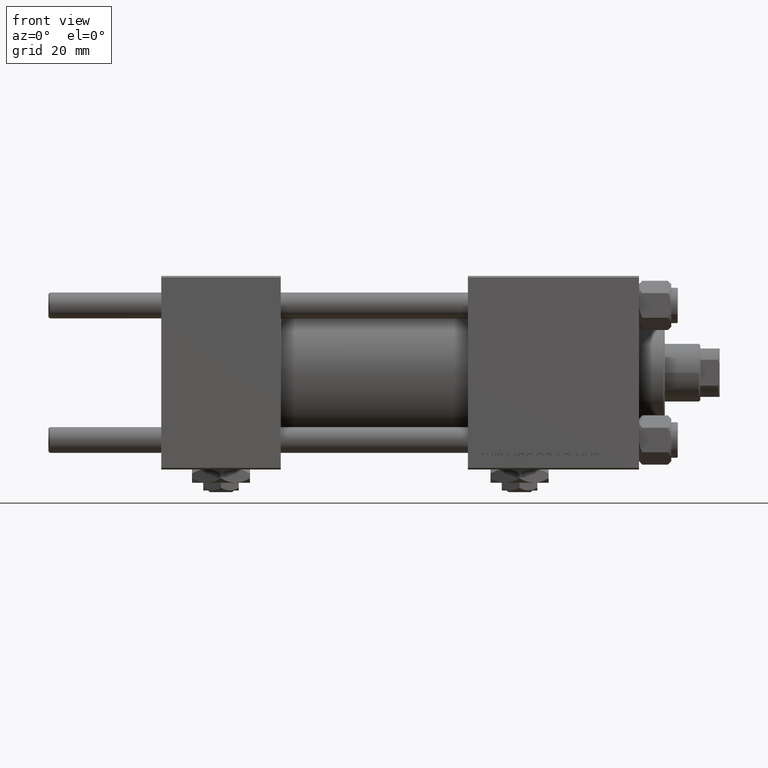
[diagram: clean part render]
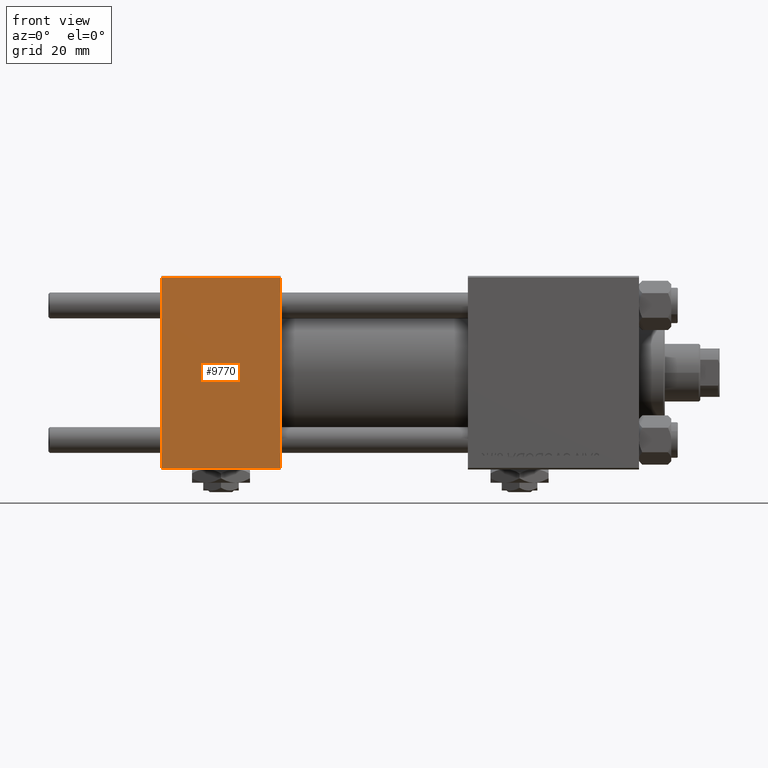
[diagram: same view with one face highlighted and labeled with its STEP entity id]
A machine part, front view. The second image highlights one B-rep face of the part: STEP entity #9770.
In plain terms, the highlighted planar face has unit normal (0, 1, 0).
Its self-contained STEP definition (entity closure, byte-faithful):
#600 = VERTEX_POINT ( 'NONE', #5078 ) ;
#650 = ORIENTED_EDGE ( 'NONE', *, *, #9889, .T. ) ;
#986 = DIRECTION ( 'NONE',  ( 0.000000000000000000, 0.000000000000000000, -1.000000000000000000 ) ) ;
#5078 = CARTESIAN_POINT ( 'NONE',  ( 0.000000000000000000, -30.00000000000000000, -29.50000000000001776 ) ) ;
#5216 = PLANE ( 'NONE',  #44458 ) ;
#5726 = FACE_OUTER_BOUND ( 'NONE', #19667, .T. ) ;
#6202 = CARTESIAN_POINT ( 'NONE',  ( 0.000000000000000000, -30.00000000000000000, 29.99999999999999289 ) ) ;
#7660 = VERTEX_POINT ( 'NONE', #10792 ) ;
#8531 = CARTESIAN_POINT ( 'NONE',  ( 37.00000000000000000, -30.00000000000000000, 29.49999999999999289 ) ) ;
#9137 = DIRECTION ( 'NONE',  ( 0.000000000000000000, -0.000000000000000000, 1.000000000000000000 ) ) ;
#9397 = DIRECTION ( 'NONE',  ( -0.000000000000000000, 1.000000000000000000, 0.000000000000000000 ) ) ;
#9770 = ADVANCED_FACE ( 'NONE', ( #5726 ), #5216, .F. ) ;
#9889 = EDGE_CURVE ( 'NONE', #47557, #600, #29851, .T. ) ;
#10792 = CARTESIAN_POINT ( 'NONE',  ( 37.00000000000000000, -30.00000000000000000, 29.49999999999999289 ) ) ;
#11418 = EDGE_CURVE ( 'NONE', #7660, #14345, #13037, .T. ) ;
#12857 = EDGE_CURVE ( 'NONE', #7660, #47557, #27482, .T. ) ;
#13037 = LINE ( 'NONE', #49821, #22693 ) ;
#14331 = DIRECTION ( 'NONE',  ( 0.000000000000000000, 0.000000000000000000, -1.000000000000000000 ) ) ;
#14345 = VERTEX_POINT ( 'NONE', #18445 ) ;
#16797 = ORIENTED_EDGE ( 'NONE', *, *, #42986, .T. ) ;
#18445 = CARTESIAN_POINT ( 'NONE',  ( 37.00000000000000000, -30.00000000000000000, -29.50000000000001776 ) ) ;
#19667 = EDGE_LOOP ( 'NONE', ( #650, #16797, #46842, #33207 ) ) ;
#22693 = VECTOR ( 'NONE', #986, 1000.000000000000000 ) ;
#27482 = LINE ( 'NONE', #8531, #43684 ) ;
#29851 = LINE ( 'NONE', #6202, #34381 ) ;
#32134 = LINE ( 'NONE', #43703, #37888 ) ;
#32256 = CARTESIAN_POINT ( 'NONE',  ( 0.000000000000000000, -30.00000000000000000, 29.49999999999999289 ) ) ;
#33207 = ORIENTED_EDGE ( 'NONE', *, *, #12857, .T. ) ;
#34381 = VECTOR ( 'NONE', #14331, 1000.000000000000000 ) ;
#36581 = DIRECTION ( 'NONE',  ( 1.000000000000000000, 0.000000000000000000, 0.000000000000000000 ) ) ;
#36897 = DIRECTION ( 'NONE',  ( -1.000000000000000000, 0.000000000000000000, 0.000000000000000000 ) ) ;
#37888 = VECTOR ( 'NONE', #36581, 1000.000000000000000 ) ;
#42986 = EDGE_CURVE ( 'NONE', #600, #14345, #32134, .T. ) ;
#43684 = VECTOR ( 'NONE', #36897, 1000.000000000000000 ) ;
#43703 = CARTESIAN_POINT ( 'NONE',  ( 37.00000000000000000, -30.00000000000000000, -29.50000000000001776 ) ) ;
#44458 = AXIS2_PLACEMENT_3D ( 'NONE', #45133, #9397, #9137 ) ;
#45133 = CARTESIAN_POINT ( 'NONE',  ( 37.00000000000000000, -30.00000000000000000, 29.99999999999999289 ) ) ;
#46842 = ORIENTED_EDGE ( 'NONE', *, *, #11418, .F. ) ;
#47557 = VERTEX_POINT ( 'NONE', #32256 ) ;
#49821 = CARTESIAN_POINT ( 'NONE',  ( 37.00000000000000000, -30.00000000000000000, 29.99999999999999289 ) ) ;